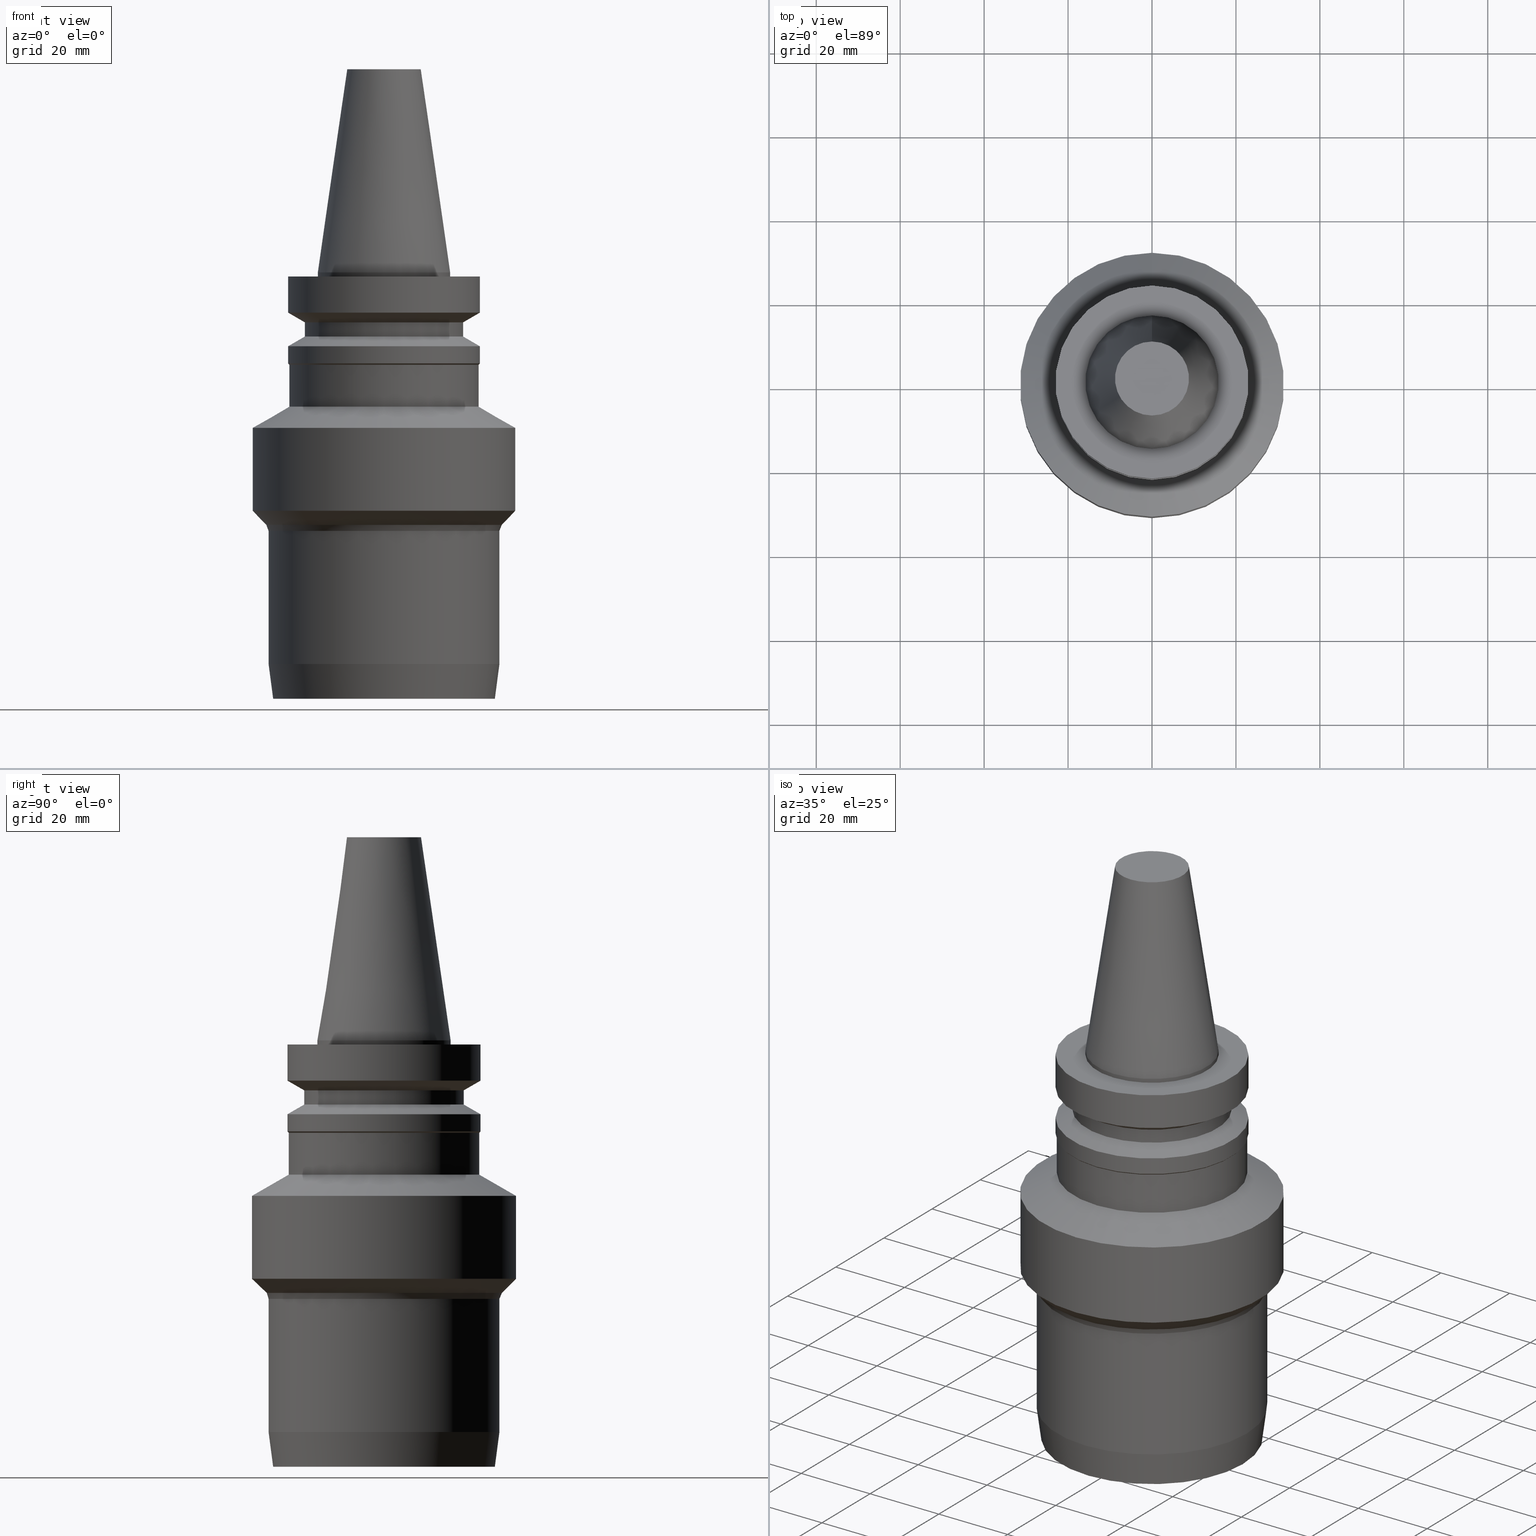
[diagram: canonical four-view strip — front | top / right | iso, engineering-drawing reading convention]
A machine part, canonical four-view strip (front | top / right | iso — engineering-drawing reading convention). The complete STEP part file that produces these views, byte-faithful:
ISO-10303-21;
HEADER;
FILE_DESCRIPTION((''),'1');
FILE_NAME('V:/90_\X2\53D65F9730C730FC30BF\X0\/00_\X2\6DE18DEF30C730FC30BF\X0\/ALL/BBT-BKUS\X2\FF76FF80FF9BFF78FF9E752852A05DE556F3\X0\201801/BBT30-HDC/BBT30-HDC1.000-4.stp','2018-02-07T04:42:28',(''),(''),'Spatial Interop R21 SP3','Kubotek KeyCreator 2011 V10.0.2 (22737)',' ');
FILE_SCHEMA(('automotive_design'));
ENDSEC;
DATA;
#1=MECHANICAL_DESIGN_GEOMETRIC_PRESENTATION_REPRESENTATION(' ',(#10,#11,#12,#13,#14,#15,#16,#17,#18,#19,#20,#21,#22,#23,#24,#25,#26,#27,#28,#29,#30,#31,#32,#33,#34,#35,#36,#37,#38,#39,#40,#41,#42,#43,#44,#45),#6);
#2=PRODUCT_DEFINITION_CONTEXT('',#46,'design');
#3=APPLICATION_PROTOCOL_DEFINITION('INTERNATIONAL STANDARD','automotive_design',1994,#46);
#4=PRODUCT_CATEGORY_RELATIONSHIP('NONE','NONE',#47,#48);
#5=SHAPE_DEFINITION_REPRESENTATION(#49,#50);
#6= (GEOMETRIC_REPRESENTATION_CONTEXT(3)GLOBAL_UNCERTAINTY_ASSIGNED_CONTEXT((#53))GLOBAL_UNIT_ASSIGNED_CONTEXT((#55,#56,#57))REPRESENTATION_CONTEXT('NONE','WORKSPACE'));
#10=STYLED_ITEM('',(#59,#60),#61);
#11=STYLED_ITEM('',(#62,#63),#64);
#12=STYLED_ITEM('',(#65),#66);
#13=STYLED_ITEM('',(#67,#68),#69);
#14=STYLED_ITEM('',(#70,#71),#72);
#15=STYLED_ITEM('',(#73,#74),#75);
#16=STYLED_ITEM('',(#76,#77),#78);
#17=STYLED_ITEM('',(#79,#80),#81);
#18=STYLED_ITEM('',(#82,#83),#84);
#19=STYLED_ITEM('',(#85,#86),#87);
#20=STYLED_ITEM('',(#88),#89);
#21=STYLED_ITEM('',(#90,#91),#92);
#22=STYLED_ITEM('',(#93),#94);
#23=STYLED_ITEM('',(#95),#96);
#24=STYLED_ITEM('',(#97,#98),#99);
#25=STYLED_ITEM('',(#100),#101);
#26=STYLED_ITEM('',(#102),#103);
#27=STYLED_ITEM('',(#104),#105);
#28=STYLED_ITEM('',(#106,#107),#108);
#29=STYLED_ITEM('',(#109),#110);
#30=STYLED_ITEM('',(#111,#112),#113);
#31=STYLED_ITEM('',(#114),#115);
#32=STYLED_ITEM('',(#116,#117),#118);
#33=STYLED_ITEM('',(#119),#120);
#34=STYLED_ITEM('',(#121,#122),#123);
#35=STYLED_ITEM('',(#124),#125);
#36=STYLED_ITEM('',(#126),#127);
#37=STYLED_ITEM('',(#128),#129);
#38=STYLED_ITEM('',(#130,#131),#132);
#39=STYLED_ITEM('',(#133),#134);
#40=STYLED_ITEM('',(#135,#136),#137);
#41=STYLED_ITEM('',(#138),#139);
#42=STYLED_ITEM('',(#140,#141),#142);
#43=STYLED_ITEM('',(#143),#144);
#44=STYLED_ITEM('',(#145),#146);
#45=STYLED_ITEM('',(#147,#148),#149);
#46=APPLICATION_CONTEXT(' ');
#47=PRODUCT_CATEGORY('part','NONE');
#48=PRODUCT_RELATED_PRODUCT_CATEGORY('detail',' ',(#150));
#49=PRODUCT_DEFINITION_SHAPE('NONE','NONE',#151);
#50=ADVANCED_BREP_SHAPE_REPRESENTATION('Unnamed[1]',(#99,#152),#6);
#53=UNCERTAINTY_MEASURE_WITH_UNIT(LENGTH_MEASURE(1.0E-006),#55,'','');
#55= (CONVERSION_BASED_UNIT('MILLIMETRE',#155)LENGTH_UNIT()NAMED_UNIT(#158));
#56= (NAMED_UNIT(#160)PLANE_ANGLE_UNIT()SI_UNIT($,.RADIAN.));
#57= (NAMED_UNIT(#160)SOLID_ANGLE_UNIT()SI_UNIT($,.STERADIAN.));
#59=PRESENTATION_STYLE_ASSIGNMENT((#166));
#60=PRESENTATION_STYLE_ASSIGNMENT((#167));
#61=ADVANCED_FACE('Unnamed[1]',(#168,#169),#170,.T.);
#62=PRESENTATION_STYLE_ASSIGNMENT((#171));
#63=PRESENTATION_STYLE_ASSIGNMENT((#172));
#64=ADVANCED_FACE('Unnamed[1]',(#173,#174),#175,.T.);
#65=PRESENTATION_STYLE_ASSIGNMENT((#176));
#66=EDGE_CURVE('Unnamed[1]',#177,#177,#178,.T.);
#67=PRESENTATION_STYLE_ASSIGNMENT((#179));
#68=PRESENTATION_STYLE_ASSIGNMENT((#180));
#69=ADVANCED_FACE('Unnamed[1]',(#181,#182),#183,.T.);
#70=PRESENTATION_STYLE_ASSIGNMENT((#184));
#71=PRESENTATION_STYLE_ASSIGNMENT((#185));
#72=ADVANCED_FACE('Unnamed[1]',(#186,#187),#188,.T.);
#73=PRESENTATION_STYLE_ASSIGNMENT((#189));
#74=PRESENTATION_STYLE_ASSIGNMENT((#190));
#75=ADVANCED_FACE('Unnamed[1]',(#191,#192),#193,.T.);
#76=PRESENTATION_STYLE_ASSIGNMENT((#194));
#77=PRESENTATION_STYLE_ASSIGNMENT((#195));
#78=ADVANCED_FACE('Unnamed[1]',(#196,#197),#198,.T.);
#79=PRESENTATION_STYLE_ASSIGNMENT((#199));
#80=PRESENTATION_STYLE_ASSIGNMENT((#200));
#81=ADVANCED_FACE('Unnamed[1]',(#201,#202),#203,.T.);
#82=PRESENTATION_STYLE_ASSIGNMENT((#204));
#83=PRESENTATION_STYLE_ASSIGNMENT((#205));
#84=ADVANCED_FACE('Unnamed[1]',(#206,#207),#208,.T.);
#85=PRESENTATION_STYLE_ASSIGNMENT((#209));
#86=PRESENTATION_STYLE_ASSIGNMENT((#210));
#87=ADVANCED_FACE('Unnamed[1]',(#211,#212),#213,.T.);
#88=PRESENTATION_STYLE_ASSIGNMENT((#214));
#89=EDGE_CURVE('Unnamed[1]',#215,#215,#216,.T.);
#90=PRESENTATION_STYLE_ASSIGNMENT((#217));
#91=PRESENTATION_STYLE_ASSIGNMENT((#218));
#92=ADVANCED_FACE('Unnamed[1]',(#219,#220),#221,.T.);
#93=PRESENTATION_STYLE_ASSIGNMENT((#222));
#94=EDGE_CURVE('Unnamed[1]',#223,#223,#224,.T.);
#95=PRESENTATION_STYLE_ASSIGNMENT((#225));
#96=EDGE_CURVE('Unnamed[1]',#226,#226,#227,.T.);
#97=PRESENTATION_STYLE_ASSIGNMENT((#228));
#98=PRESENTATION_STYLE_ASSIGNMENT((#229));
#99=MANIFOLD_SOLID_BREP('Unnamed[1]',#230);
#100=PRESENTATION_STYLE_ASSIGNMENT((#231));
#101=EDGE_CURVE('Unnamed[1]',#232,#232,#233,.T.);
#102=PRESENTATION_STYLE_ASSIGNMENT((#234));
#103=EDGE_CURVE('Unnamed[1]',#235,#235,#236,.T.);
#104=PRESENTATION_STYLE_ASSIGNMENT((#237));
#105=EDGE_CURVE('Unnamed[1]',#238,#238,#239,.T.);
#106=PRESENTATION_STYLE_ASSIGNMENT((#240));
#107=PRESENTATION_STYLE_ASSIGNMENT((#241));
#108=ADVANCED_FACE('Unnamed[1]',(#242,#243),#244,.T.);
#109=PRESENTATION_STYLE_ASSIGNMENT((#245));
#110=EDGE_CURVE('Unnamed[1]',#246,#246,#247,.T.);
#111=PRESENTATION_STYLE_ASSIGNMENT((#248));
#112=PRESENTATION_STYLE_ASSIGNMENT((#249));
#113=ADVANCED_FACE('Unnamed[1]',(#250,#251),#252,.T.);
#114=PRESENTATION_STYLE_ASSIGNMENT((#253));
#115=EDGE_CURVE('Unnamed[1]',#254,#254,#255,.T.);
#116=PRESENTATION_STYLE_ASSIGNMENT((#256));
#117=PRESENTATION_STYLE_ASSIGNMENT((#257));
#118=ADVANCED_FACE('Unnamed[1]',(#258,#259),#260,.T.);
#119=PRESENTATION_STYLE_ASSIGNMENT((#261));
#120=EDGE_CURVE('Unnamed[1]',#262,#262,#263,.T.);
#121=PRESENTATION_STYLE_ASSIGNMENT((#264));
#122=PRESENTATION_STYLE_ASSIGNMENT((#265));
#123=ADVANCED_FACE('Unnamed[1]',(#266),#267,.T.);
#124=PRESENTATION_STYLE_ASSIGNMENT((#268));
#125=EDGE_CURVE('Unnamed[1]',#269,#269,#270,.T.);
#126=PRESENTATION_STYLE_ASSIGNMENT((#271));
#127=EDGE_CURVE('Unnamed[1]',#272,#272,#273,.T.);
#128=PRESENTATION_STYLE_ASSIGNMENT((#274));
#129=EDGE_CURVE('Unnamed[1]',#275,#275,#276,.T.);
#130=PRESENTATION_STYLE_ASSIGNMENT((#277));
#131=PRESENTATION_STYLE_ASSIGNMENT((#278));
#132=ADVANCED_FACE('Unnamed[1]',(#279,#280),#281,.T.);
#133=PRESENTATION_STYLE_ASSIGNMENT((#282));
#134=EDGE_CURVE('Unnamed[1]',#283,#283,#284,.T.);
#135=PRESENTATION_STYLE_ASSIGNMENT((#285));
#136=PRESENTATION_STYLE_ASSIGNMENT((#286));
#137=ADVANCED_FACE('Unnamed[1]',(#287,#288),#289,.T.);
#138=PRESENTATION_STYLE_ASSIGNMENT((#290));
#139=EDGE_CURVE('Unnamed[1]',#291,#291,#292,.T.);
#140=PRESENTATION_STYLE_ASSIGNMENT((#293));
#141=PRESENTATION_STYLE_ASSIGNMENT((#294));
#142=ADVANCED_FACE('Unnamed[1]',(#295),#296,.T.);
#143=PRESENTATION_STYLE_ASSIGNMENT((#297));
#144=EDGE_CURVE('Unnamed[1]',#298,#298,#299,.T.);
#145=PRESENTATION_STYLE_ASSIGNMENT((#300));
#146=EDGE_CURVE('Unnamed[1]',#301,#301,#302,.T.);
#147=PRESENTATION_STYLE_ASSIGNMENT((#303));
#148=PRESENTATION_STYLE_ASSIGNMENT((#304));
#149=ADVANCED_FACE('Unnamed[1]',(#305,#306),#307,.T.);
#150=PRODUCT('Unnamed[1]','Unnamed[1]','PART-Unnamed[1]-DESC',(#308));
#151=PRODUCT_DEFINITION('NONE','NONE',#309,#2);
#152=AXIS2_PLACEMENT_3D('',#310,#311,#312);
#155=LENGTH_MEASURE_WITH_UNIT(LENGTH_MEASURE(1.0),#313);
#158=DIMENSIONAL_EXPONENTS(1.0,0.0,0.0,0.0,0.0,0.0,0.0);
#160=DIMENSIONAL_EXPONENTS(0.0,0.0,0.0,0.0,0.0,0.0,0.0);
#166=SURFACE_STYLE_USAGE(.BOTH.,#314);
#167=CURVE_STYLE('',#315,POSITIVE_LENGTH_MEASURE(1000.0),#316);
#168=FACE_BOUND('',#317,.T.);
#169=FACE_BOUND('',#318,.T.);
#170=CONICAL_SURFACE('',#319,21.0,1.04719755058881);
#171=SURFACE_STYLE_USAGE(.BOTH.,#320);
#172=CURVE_STYLE('',#321,POSITIVE_LENGTH_MEASURE(1000.0),#322);
#173=FACE_BOUND('',#323,.T.);
#174=FACE_BOUND('',#324,.T.);
#175=CYLINDRICAL_SURFACE('',#325,23.0);
#176=CURVE_STYLE('',#326,POSITIVE_LENGTH_MEASURE(1000.0),#327);
#177=VERTEX_POINT('',#328);
#178=CIRCLE('',#329,19.0);
#179=SURFACE_STYLE_USAGE(.BOTH.,#330);
#180=CURVE_STYLE('',#331,POSITIVE_LENGTH_MEASURE(1000.0),#332);
#181=FACE_BOUND('',#333,.T.);
#182=FACE_BOUND('',#334,.T.);
#183=CYLINDRICAL_SURFACE('',#335,19.0);
#184=SURFACE_STYLE_USAGE(.BOTH.,#336);
#185=CURVE_STYLE('',#337,POSITIVE_LENGTH_MEASURE(1000.0),#338);
#186=FACE_BOUND('',#339,.T.);
#187=FACE_BOUND('',#340,.T.);
#188=CONICAL_SURFACE('',#341,12.3457500009933,0.144815870013618);
#189=SURFACE_STYLE_USAGE(.BOTH.,#342);
#190=CURVE_STYLE('',#343,POSITIVE_LENGTH_MEASURE(1000.0),#344);
#191=FACE_BOUND('',#345,.T.);
#192=FACE_BOUND('',#346,.T.);
#193=CONICAL_SURFACE('',#347,27.0750000000002,1.04719755119662);
#194=SURFACE_STYLE_USAGE(.BOTH.,#348);
#195=CURVE_STYLE('',#349,POSITIVE_LENGTH_MEASURE(1000.0),#350);
#196=FACE_BOUND('',#351,.T.);
#197=FACE_BOUND('',#352,.T.);
#198=CONICAL_SURFACE('',#353,21.0,1.04719755058882);
#199=SURFACE_STYLE_USAGE(.BOTH.,#354);
#200=CURVE_STYLE('',#355,POSITIVE_LENGTH_MEASURE(1000.0),#356);
#201=FACE_BOUND('',#357,.T.);
#202=FACE_BOUND('',#358,.T.);
#203=CYLINDRICAL_SURFACE('',#359,31.45);
#204=SURFACE_STYLE_USAGE(.BOTH.,#360);
#205=CURVE_STYLE('',#361,POSITIVE_LENGTH_MEASURE(1000.0),#362);
#206=FACE_OUTER_BOUND('',#363,.T.);
#207=FACE_BOUND('',#364,.T.);
#208=PLANE('',#365);
#209=SURFACE_STYLE_USAGE(.BOTH.,#366);
#210=CURVE_STYLE('',#367,POSITIVE_LENGTH_MEASURE(1000.0),#368);
#211=FACE_BOUND('',#369,.T.);
#212=FACE_BOUND('',#370,.T.);
#213=CYLINDRICAL_SURFACE('',#371,27.5000000000018);
#214=CURVE_STYLE('',#372,POSITIVE_LENGTH_MEASURE(1000.0),#373);
#215=VERTEX_POINT('',#374);
#216=CIRCLE('',#375,15.875);
#217=SURFACE_STYLE_USAGE(.BOTH.,#376);
#218=CURVE_STYLE('',#377,POSITIVE_LENGTH_MEASURE(1000.0),#378);
#219=FACE_BOUND('',#379,.T.);
#220=FACE_BOUND('',#380,.T.);
#221=CYLINDRICAL_SURFACE('',#381,22.7000000000001);
#222=CURVE_STYLE('',#382,POSITIVE_LENGTH_MEASURE(1000.0),#383);
#223=VERTEX_POINT('',#384);
#224=CIRCLE('',#385,23.0);
#225=CURVE_STYLE('',#386,POSITIVE_LENGTH_MEASURE(1000.0),#387);
#226=VERTEX_POINT('',#388);
#227=CIRCLE('',#389,31.45);
#228=SURFACE_STYLE_USAGE(.BOTH.,#390);
#229=CURVE_STYLE('',#391,POSITIVE_LENGTH_MEASURE(1000.0),#392);
#230=CLOSED_SHELL('',(#123,#72,#113,#84,#64,#61,#69,#78,#132,#137,#92,#75,#81,#108,#149,#87,#118,#142));
#231=CURVE_STYLE('',#393,POSITIVE_LENGTH_MEASURE(1000.0),#394);
#232=VERTEX_POINT('',#395);
#233=CIRCLE('',#396,22.7);
#234=CURVE_STYLE('',#397,POSITIVE_LENGTH_MEASURE(1000.0),#398);
#235=VERTEX_POINT('',#399);
#236=CIRCLE('',#400,22.7000000000003);
#237=CURVE_STYLE('',#401,POSITIVE_LENGTH_MEASURE(1000.0),#402);
#238=VERTEX_POINT('',#403);
#239=CIRCLE('',#404,26.40856909562);
#240=SURFACE_STYLE_USAGE(.BOTH.,#405);
#241=CURVE_STYLE('',#406,POSITIVE_LENGTH_MEASURE(1000.0),#407);
#242=FACE_BOUND('',#408,.T.);
#243=FACE_BOUND('',#409,.T.);
#244=CONICAL_SURFACE('',#410,29.7678932188139,0.785398163397456);
#245=CURVE_STYLE('',#411,POSITIVE_LENGTH_MEASURE(1000.0),#412);
#246=VERTEX_POINT('',#413);
#247=CIRCLE('',#414,28.0857864376278);
#248=SURFACE_STYLE_USAGE(.BOTH.,#415);
#249=CURVE_STYLE('',#416,POSITIVE_LENGTH_MEASURE(1000.0),#417);
#250=FACE_BOUND('',#418,.T.);
#251=FACE_BOUND('',#419,.T.);
#252=CYLINDRICAL_SURFACE('',#420,15.875);
#253=CURVE_STYLE('',#421,POSITIVE_LENGTH_MEASURE(1000.0),#422);
#254=VERTEX_POINT('',#423);
#255=CIRCLE('',#424,23.0);
#256=SURFACE_STYLE_USAGE(.BOTH.,#425);
#257=CURVE_STYLE('',#426,POSITIVE_LENGTH_MEASURE(1000.0),#427);
#258=FACE_BOUND('',#428,.T.);
#259=FACE_BOUND('',#429,.T.);
#260=CONICAL_SURFACE('',#430,26.954284547811,0.130899693899447);
#261=CURVE_STYLE('',#431,POSITIVE_LENGTH_MEASURE(1000.0),#432);
#262=VERTEX_POINT('',#433);
#263=CIRCLE('',#434,8.81650000198669);
#264=SURFACE_STYLE_USAGE(.BOTH.,#435);
#265=CURVE_STYLE('',#436,POSITIVE_LENGTH_MEASURE(1000.0),#437);
#266=FACE_OUTER_BOUND('',#438,.T.);
#267=PLANE('',#439);
#268=CURVE_STYLE('',#440,POSITIVE_LENGTH_MEASURE(1000.0),#441);
#269=VERTEX_POINT('',#442);
#270=CIRCLE('',#443,19.0);
#271=CURVE_STYLE('',#444,POSITIVE_LENGTH_MEASURE(1000.0),#445);
#272=VERTEX_POINT('',#446);
#273=CIRCLE('',#447,23.0);
#274=CURVE_STYLE('',#448,POSITIVE_LENGTH_MEASURE(1000.0),#449);
#275=VERTEX_POINT('',#450);
#276=CIRCLE('',#451,27.5000000000018);
#277=SURFACE_STYLE_USAGE(.BOTH.,#452);
#278=CURVE_STYLE('',#453,POSITIVE_LENGTH_MEASURE(1000.0),#454);
#279=FACE_BOUND('',#455,.T.);
#280=FACE_BOUND('',#456,.T.);
#281=CYLINDRICAL_SURFACE('',#457,23.0);
#282=CURVE_STYLE('',#458,POSITIVE_LENGTH_MEASURE(1000.0),#459);
#283=VERTEX_POINT('',#460);
#284=CIRCLE('',#461,27.5000000000019);
#285=SURFACE_STYLE_USAGE(.BOTH.,#462);
#286=CURVE_STYLE('',#463,POSITIVE_LENGTH_MEASURE(1000.0),#464);
#287=FACE_BOUND('',#465,.T.);
#288=FACE_BOUND('',#466,.T.);
#289=CONICAL_SURFACE('',#467,22.85,0.785398163397401);
#290=CURVE_STYLE('',#468,POSITIVE_LENGTH_MEASURE(1000.0),#469);
#291=VERTEX_POINT('',#470);
#292=CIRCLE('',#471,15.875);
#293=SURFACE_STYLE_USAGE(.BOTH.,#472);
#294=CURVE_STYLE('',#473,POSITIVE_LENGTH_MEASURE(1000.0),#474);
#295=FACE_OUTER_BOUND('',#475,.T.);
#296=PLANE('',#476);
#297=CURVE_STYLE('',#477,POSITIVE_LENGTH_MEASURE(1000.0),#478);
#298=VERTEX_POINT('',#479);
#299=CIRCLE('',#480,31.45);
#300=CURVE_STYLE('',#481,POSITIVE_LENGTH_MEASURE(1000.0),#482);
#301=VERTEX_POINT('',#483);
#302=CIRCLE('',#484,23.0);
#303=SURFACE_STYLE_USAGE(.BOTH.,#485);
#304=CURVE_STYLE('',#486,POSITIVE_LENGTH_MEASURE(1000.0),#487);
#305=FACE_BOUND('',#488,.T.);
#306=FACE_BOUND('',#489,.T.);
#307=CONICAL_SURFACE('',#490,27.7928932188148,0.392699081698697);
#308=PRODUCT_CONTEXT('',#46,'mechanical');
#309=PRODUCT_DEFINITION_FORMATION_WITH_SPECIFIED_SOURCE(' ','NONE',#150,.NOT_KNOWN.);
#310=CARTESIAN_POINT('',(0.0,0.0,0.0));
#311=DIRECTION('',(0.0,0.0,1.0));
#312=DIRECTION('',(1.0,0.0,0.0));
#313= (NAMED_UNIT(#158)LENGTH_UNIT()SI_UNIT(.MILLI.,.METRE.));
#314=SURFACE_SIDE_STYLE('',(#492));
#315=DRAUGHTING_PRE_DEFINED_CURVE_FONT('continuous');
#316=COLOUR_RGB('',0.0,1.0,0.0);
#317=EDGE_LOOP('',(#493));
#318=EDGE_LOOP('',(#494));
#319=AXIS2_PLACEMENT_3D('',#495,#496,#497);
#320=SURFACE_SIDE_STYLE('',(#498));
#321=DRAUGHTING_PRE_DEFINED_CURVE_FONT('continuous');
#322=COLOUR_RGB('',0.0,1.0,0.0);
#323=EDGE_LOOP('',(#499));
#324=EDGE_LOOP('',(#500));
#325=AXIS2_PLACEMENT_3D('',#501,#502,#503);
#326=DRAUGHTING_PRE_DEFINED_CURVE_FONT('continuous');
#327=COLOUR_RGB('',0.0,1.0,0.0);
#328=CARTESIAN_POINT('',(9.36279151221199E-016,19.0,-15.29059892));
#329=AXIS2_PLACEMENT_3D('',#504,#505,#506);
#330=SURFACE_SIDE_STYLE('',(#507));
#331=DRAUGHTING_PRE_DEFINED_CURVE_FONT('continuous');
#332=COLOUR_RGB('',0.0,1.0,0.0);
#333=EDGE_LOOP('',(#508));
#334=EDGE_LOOP('',(#509));
#335=AXIS2_PLACEMENT_3D('',#510,#511,#512);
#336=SURFACE_SIDE_STYLE('',(#513));
#337=DRAUGHTING_PRE_DEFINED_CURVE_FONT('continuous');
#338=COLOUR_RGB('',0.0,1.0,0.0);
#339=EDGE_LOOP('',(#514));
#340=EDGE_LOOP('',(#515));
#341=AXIS2_PLACEMENT_3D('',#516,#517,#518);
#342=SURFACE_SIDE_STYLE('',(#519));
#343=DRAUGHTING_PRE_DEFINED_CURVE_FONT('continuous');
#344=COLOUR_RGB('',0.0,1.0,0.0);
#345=EDGE_LOOP('',(#520));
#346=EDGE_LOOP('',(#521));
#347=AXIS2_PLACEMENT_3D('',#522,#523,#524);
#348=SURFACE_SIDE_STYLE('',(#525));
#349=DRAUGHTING_PRE_DEFINED_CURVE_FONT('continuous');
#350=COLOUR_RGB('',0.0,1.0,0.0);
#351=EDGE_LOOP('',(#526));
#352=EDGE_LOOP('',(#527));
#353=AXIS2_PLACEMENT_3D('',#528,#529,#530);
#354=SURFACE_SIDE_STYLE('',(#531));
#355=DRAUGHTING_PRE_DEFINED_CURVE_FONT('continuous');
#356=COLOUR_RGB('',0.0,1.0,0.0);
#357=EDGE_LOOP('',(#532));
#358=EDGE_LOOP('',(#533));
#359=AXIS2_PLACEMENT_3D('',#534,#535,#536);
#360=SURFACE_SIDE_STYLE('',(#537));
#361=DRAUGHTING_PRE_DEFINED_CURVE_FONT('continuous');
#362=COLOUR_RGB('',0.0,1.0,0.0);
#363=EDGE_LOOP('',(#538));
#364=EDGE_LOOP('',(#539));
#365=AXIS2_PLACEMENT_3D('',#540,#541,#542);
#366=SURFACE_SIDE_STYLE('',(#543));
#367=DRAUGHTING_PRE_DEFINED_CURVE_FONT('continuous');
#368=COLOUR_RGB('',0.0,1.0,0.0);
#369=EDGE_LOOP('',(#544));
#370=EDGE_LOOP('',(#545));
#371=AXIS2_PLACEMENT_3D('',#546,#547,#548);
#372=DRAUGHTING_PRE_DEFINED_CURVE_FONT('continuous');
#373=COLOUR_RGB('',0.0,1.0,0.0);
#374=CARTESIAN_POINT('',(6.12323399573675E-017,15.875,-0.999999999999998));
#375=AXIS2_PLACEMENT_3D('',#549,#550,#551);
#376=SURFACE_SIDE_STYLE('',(#552));
#377=DRAUGHTING_PRE_DEFINED_CURVE_FONT('continuous');
#378=COLOUR_RGB('',0.0,1.0,0.0);
#379=EDGE_LOOP('',(#553));
#380=EDGE_LOOP('',(#554));
#381=AXIS2_PLACEMENT_3D('',#555,#556,#557);
#382=DRAUGHTING_PRE_DEFINED_CURVE_FONT('continuous');
#383=COLOUR_RGB('',0.0,1.0,0.0);
#384=CARTESIAN_POINT('',(1.32874177707488E-015,23.0,-21.7000000000001));
#385=AXIS2_PLACEMENT_3D('',#558,#559,#560);
#386=DRAUGHTING_PRE_DEFINED_CURVE_FONT('continuous');
#387=COLOUR_RGB('',0.0,1.0,0.0);
#388=CARTESIAN_POINT('',(3.47857255950651E-015,31.45,-56.8094010767582));
#389=AXIS2_PLACEMENT_3D('',#561,#562,#563);
#390=SURFACE_SIDE_STYLE('',(#564));
#391=DRAUGHTING_PRE_DEFINED_CURVE_FONT('continuous');
#392=COLOUR_RGB('',0.0,1.0,0.0);
#393=DRAUGHTING_PRE_DEFINED_CURVE_FONT('continuous');
#394=COLOUR_RGB('',0.0,1.0,0.0);
#395=CARTESIAN_POINT('',(1.3471114790621E-015,22.7,-22.0000000000002));
#396=AXIS2_PLACEMENT_3D('',#565,#566,#567);
#397=DRAUGHTING_PRE_DEFINED_CURVE_FONT('continuous');
#398=COLOUR_RGB('',0.0,1.0,0.0);
#399=CARTESIAN_POINT('',(1.95943487863577E-015,22.7000000000003,-32.0));
#400=AXIS2_PLACEMENT_3D('',#568,#569,#570);
#401=DRAUGHTING_PRE_DEFINED_CURVE_FONT('continuous');
#402=COLOUR_RGB('',0.0,1.0,0.0);
#403=CARTESIAN_POINT('',(6.22120573966852E-015,26.40856909562,-101.6));
#404=AXIS2_PLACEMENT_3D('',#571,#572,#573);
#405=SURFACE_SIDE_STYLE('',(#574));
#406=DRAUGHTING_PRE_DEFINED_CURVE_FONT('continuous');
#407=COLOUR_RGB('',0.0,1.0,0.0);
#408=EDGE_LOOP('',(#575));
#409=EDGE_LOOP('',(#576));
#410=AXIS2_PLACEMENT_3D('',#577,#578,#579);
#411=DRAUGHTING_PRE_DEFINED_CURVE_FONT('continuous');
#412=COLOUR_RGB('',0.0,1.0,0.0);
#413=CARTESIAN_POINT('',(3.68457122804686E-015,28.0857864376278,-60.1736146391303));
#414=AXIS2_PLACEMENT_3D('',#580,#581,#582);
#415=SURFACE_SIDE_STYLE('',(#583));
#416=DRAUGHTING_PRE_DEFINED_CURVE_FONT('continuous');
#417=COLOUR_RGB('',0.0,1.0,0.0);
#418=EDGE_LOOP('',(#584));
#419=EDGE_LOOP('',(#585));
#420=AXIS2_PLACEMENT_3D('',#586,#587,#588);
#421=DRAUGHTING_PRE_DEFINED_CURVE_FONT('continuous');
#422=COLOUR_RGB('',0.0,1.0,0.0);
#423=CARTESIAN_POINT('',(6.12323399573674E-017,23.0,-0.999999999999997));
#424=AXIS2_PLACEMENT_3D('',#589,#590,#591);
#425=SURFACE_SIDE_STYLE('',(#592));
#426=DRAUGHTING_PRE_DEFINED_CURVE_FONT('continuous');
#427=COLOUR_RGB('',0.0,1.0,0.0);
#428=EDGE_LOOP('',(#593));
#429=EDGE_LOOP('',(#594));
#430=AXIS2_PLACEMENT_3D('',#595,#596,#597);
#431=DRAUGHTING_PRE_DEFINED_CURVE_FONT('continuous');
#432=COLOUR_RGB('',0.0,1.0,0.0);
#433=CARTESIAN_POINT('',(-2.96364525393659E-015,8.81650000198669,48.4));
#434=AXIS2_PLACEMENT_3D('',#598,#599,#600);
#435=SURFACE_SIDE_STYLE('',(#601));
#436=DRAUGHTING_PRE_DEFINED_CURVE_FONT('continuous');
#437=COLOUR_RGB('',0.0,1.0,0.0);
#438=EDGE_LOOP('',(#602));
#439=AXIS2_PLACEMENT_3D('',#603,#604,#605);
#440=DRAUGHTING_PRE_DEFINED_CURVE_FONT('continuous');
#441=COLOUR_RGB('',0.0,1.0,0.0);
#442=CARTESIAN_POINT('',(7.29240495619202E-016,19.0,-11.90940108));
#443=AXIS2_PLACEMENT_3D('',#606,#607,#608);
#444=DRAUGHTING_PRE_DEFINED_CURVE_FONT('continuous');
#445=COLOUR_RGB('',0.0,1.0,0.0);
#446=CARTESIAN_POINT('',(1.07768918324967E-015,23.0,-17.6));
#447=AXIS2_PLACEMENT_3D('',#609,#610,#611);
#448=DRAUGHTING_PRE_DEFINED_CURVE_FONT('continuous');
#449=COLOUR_RGB('',0.0,1.0,0.0);
#450=CARTESIAN_POINT('',(3.7711668336703E-015,27.5000000000018,-61.5878282015015));
#451=AXIS2_PLACEMENT_3D('',#612,#613,#614);
#452=SURFACE_SIDE_STYLE('',(#615));
#453=DRAUGHTING_PRE_DEFINED_CURVE_FONT('continuous');
#454=COLOUR_RGB('',0.0,1.0,0.0);
#455=EDGE_LOOP('',(#616));
#456=EDGE_LOOP('',(#617));
#457=AXIS2_PLACEMENT_3D('',#618,#619,#620);
#458=DRAUGHTING_PRE_DEFINED_CURVE_FONT('continuous');
#459=COLOUR_RGB('',0.0,1.0,0.0);
#460=CARTESIAN_POINT('',(5.71357489785489E-015,27.500000000002,-93.309759219277));
#461=AXIS2_PLACEMENT_3D('',#621,#622,#623);
#462=SURFACE_SIDE_STYLE('',(#624));
#463=DRAUGHTING_PRE_DEFINED_CURVE_FONT('continuous');
#464=COLOUR_RGB('',0.0,1.0,0.0);
#465=EDGE_LOOP('',(#625));
#466=EDGE_LOOP('',(#626));
#467=AXIS2_PLACEMENT_3D('',#627,#628,#629);
#468=DRAUGHTING_PRE_DEFINED_CURVE_FONT('continuous');
#469=COLOUR_RGB('',0.0,1.0,0.0);
#470=CARTESIAN_POINT('',(-1.95674482349743E-031,15.875,1.94412679364642E-015));
#471=AXIS2_PLACEMENT_3D('',#630,#631,#632);
#472=SURFACE_SIDE_STYLE('',(#633));
#473=DRAUGHTING_PRE_DEFINED_CURVE_FONT('continuous');
#474=COLOUR_RGB('',0.0,1.0,0.0);
#475=EDGE_LOOP('',(#634));
#476=AXIS2_PLACEMENT_3D('',#635,#636,#637);
#477=DRAUGHTING_PRE_DEFINED_CURVE_FONT('continuous');
#478=COLOUR_RGB('',0.0,1.0,0.0);
#479=CARTESIAN_POINT('',(2.26876932326384E-015,31.45,-37.0518148554089));
#480=AXIS2_PLACEMENT_3D('',#638,#639,#640);
#481=DRAUGHTING_PRE_DEFINED_CURVE_FONT('continuous');
#482=COLOUR_RGB('',0.0,1.0,0.0);
#483=CARTESIAN_POINT('',(5.87830463590729E-016,23.0,-9.59999999999999));
#484=AXIS2_PLACEMENT_3D('',#641,#642,#643);
#485=SURFACE_SIDE_STYLE('',(#644));
#486=DRAUGHTING_PRE_DEFINED_CURVE_FONT('continuous');
#487=COLOUR_RGB('',0.0,1.0,0.0);
#488=EDGE_LOOP('',(#645));
#489=EDGE_LOOP('',(#646));
#490=AXIS2_PLACEMENT_3D('',#647,#648,#649);
#492=SURFACE_STYLE_FILL_AREA(#650);
#493=ORIENTED_EDGE('',*,*,#125,.F.);
#494=ORIENTED_EDGE('',*,*,#146,.T.);
#495=CARTESIAN_POINT('',(6.58535479604966E-016,1.31707095920993E-015,-10.75470054));
#496=DIRECTION('',(-6.12323399573677E-017,-1.2246467991477E-016,1.0));
#497=DIRECTION('',(-1.23259516440783E-032,1.0,1.2246467991477E-016));
#498=SURFACE_STYLE_FILL_AREA(#651);
#499=ORIENTED_EDGE('',*,*,#146,.F.);
#500=ORIENTED_EDGE('',*,*,#115,.T.);
#501=CARTESIAN_POINT('',(3.24531401774048E-016,6.49062803548097E-016,-5.3));
#502=DIRECTION('',(6.12323399573677E-017,1.22464679914716E-016,-1.0));
#503=DIRECTION('',(-1.23259516440783E-032,1.0,1.22464679914716E-016));
#504=CARTESIAN_POINT('',(9.36279151221199E-016,1.8725583024424E-015,-15.29059892));
#505=DIRECTION('',(6.12323399573677E-017,1.2246467991475E-016,-1.0));
#506=DIRECTION('',(-1.23259516440783E-032,1.0,1.2246467991475E-016));
#507=SURFACE_STYLE_FILL_AREA(#652);
#508=ORIENTED_EDGE('',*,*,#66,.F.);
#509=ORIENTED_EDGE('',*,*,#125,.T.);
#510=CARTESIAN_POINT('',(8.32759823420201E-016,1.6655196468404E-015,-13.6));
#511=DIRECTION('',(6.12323399573677E-017,1.2246467991475E-016,-1.0));
#512=DIRECTION('',(-1.23259516440783E-032,1.0,1.2246467991475E-016));
#513=SURFACE_STYLE_FILL_AREA(#653);
#514=ORIENTED_EDGE('',*,*,#139,.F.);
#515=ORIENTED_EDGE('',*,*,#120,.T.);
#516=CARTESIAN_POINT('',(-1.4818226269683E-015,-2.96364525393659E-015,24.2));
#517=DIRECTION('',(6.12323399573677E-017,1.22464679914765E-016,-1.0));
#518=DIRECTION('',(-1.23259516440785E-032,1.0,1.22464679914765E-016));
#519=SURFACE_STYLE_FILL_AREA(#654);
#520=ORIENTED_EDGE('',*,*,#144,.F.);
#521=ORIENTED_EDGE('',*,*,#103,.T.);
#522=CARTESIAN_POINT('',(2.11410210094981E-015,4.22820420189961E-015,-34.5259074277045));
#523=DIRECTION('',(6.12323399573677E-017,1.22464679914756E-016,-1.0));
#524=DIRECTION('',(-1.23259516440769E-032,1.0,1.22464679914756E-016));
#525=SURFACE_STYLE_FILL_AREA(#655);
#526=ORIENTED_EDGE('',*,*,#127,.F.);
#527=ORIENTED_EDGE('',*,*,#66,.T.);
#528=CARTESIAN_POINT('',(1.00698416723543E-015,2.01396833447087E-015,-16.44529946));
#529=DIRECTION('',(6.12323399573677E-017,1.2246467991477E-016,-1.0));
#530=DIRECTION('',(-1.23259516440783E-032,1.0,1.2246467991477E-016));
#531=SURFACE_STYLE_FILL_AREA(#656);
#532=ORIENTED_EDGE('',*,*,#96,.F.);
#533=ORIENTED_EDGE('',*,*,#144,.T.);
#534=CARTESIAN_POINT('',(2.87367094138517E-015,5.74734188277035E-015,-46.9306079660835));
#535=DIRECTION('',(6.12323399573677E-017,1.2246467991475E-016,-1.0));
#536=DIRECTION('',(-1.23259516440772E-032,1.0,1.2246467991475E-016));
#537=SURFACE_STYLE_FILL_AREA(#657);
#538=ORIENTED_EDGE('',*,*,#115,.F.);
#539=ORIENTED_EDGE('',*,*,#89,.T.);
#540=CARTESIAN_POINT('',(6.12323399573674E-017,19.4375,-0.999999999999998));
#541=DIRECTION('',(-6.12323399573677E-017,-1.22464679914735E-016,1.0));
#542=DIRECTION('',(1.23259516440783E-032,-1.0,-1.22464679914735E-016));
#543=SURFACE_STYLE_FILL_AREA(#658);
#544=ORIENTED_EDGE('',*,*,#134,.F.);
#545=ORIENTED_EDGE('',*,*,#129,.T.);
#546=CARTESIAN_POINT('',(4.74237086576259E-015,9.48474173152518E-015,-77.4487937103892));
#547=DIRECTION('',(6.12323399573677E-017,1.22464679914734E-016,-1.0));
#548=DIRECTION('',(-1.23259516440775E-032,1.0,1.22464679914734E-016));
#549=CARTESIAN_POINT('',(6.12323399573677E-017,1.22464679914735E-016,-1.0));
#550=DIRECTION('',(6.12323399573677E-017,1.22464679914714E-016,-1.0));
#551=DIRECTION('',(-1.23259516440783E-032,1.0,1.22464679914714E-016));
#552=SURFACE_STYLE_FILL_AREA(#659);
#553=ORIENTED_EDGE('',*,*,#103,.F.);
#554=ORIENTED_EDGE('',*,*,#101,.T.);
#555=CARTESIAN_POINT('',(1.65327317884893E-015,3.30654635769787E-015,-27.0000000000001));
#556=DIRECTION('',(6.12323399573677E-017,1.22464679914766E-016,-1.0));
#557=DIRECTION('',(-1.23259516440767E-032,1.0,1.22464679914766E-016));
#558=CARTESIAN_POINT('',(1.32874177707488E-015,2.65748355414977E-015,-21.7000000000001));
#559=DIRECTION('',(6.12323399573677E-017,1.22464679914716E-016,-1.0));
#560=DIRECTION('',(-1.23259516440783E-032,1.0,1.22464679914716E-016));
#561=CARTESIAN_POINT('',(3.47857255950651E-015,6.95714511901301E-015,-56.8094010767582));
#562=DIRECTION('',(6.12323399573677E-017,1.2246467991475E-016,-1.0));
#563=DIRECTION('',(-1.23259516440772E-032,1.0,1.2246467991475E-016));
#564=SURFACE_STYLE_FILL_AREA(#660);
#565=CARTESIAN_POINT('',(1.3471114790621E-015,2.6942229581242E-015,-22.0000000000002));
#566=DIRECTION('',(6.12323399573677E-017,1.22464679914767E-016,-1.0));
#567=DIRECTION('',(-1.23259516440768E-032,1.0,1.22464679914767E-016));
#568=CARTESIAN_POINT('',(1.95943487863577E-015,3.91886975727154E-015,-32.0));
#569=DIRECTION('',(6.12323399573677E-017,1.22464679914765E-016,-1.0));
#570=DIRECTION('',(-1.23259516440766E-032,1.0,1.22464679914765E-016));
#571=CARTESIAN_POINT('',(6.22120573966852E-015,1.2442411479337E-014,-101.6));
#572=DIRECTION('',(6.12323399573677E-017,1.2246467991471E-016,-1.0));
#573=DIRECTION('',(-1.23259516440783E-032,1.0,1.2246467991471E-016));
#574=SURFACE_STYLE_FILL_AREA(#661);
#575=ORIENTED_EDGE('',*,*,#110,.F.);
#576=ORIENTED_EDGE('',*,*,#96,.T.);
#577=CARTESIAN_POINT('',(3.58157189377668E-015,7.16314378755337E-015,-58.4915078579442));
#578=DIRECTION('',(-6.12323399573677E-017,-1.2246467991474E-016,1.0));
#579=DIRECTION('',(-1.23259516440782E-032,1.0,1.2246467991474E-016));
#580=CARTESIAN_POINT('',(3.68457122804686E-015,7.36914245609372E-015,-60.1736146391303));
#581=DIRECTION('',(6.12323399573677E-017,1.22464679914729E-016,-1.0));
#582=DIRECTION('',(-1.23259516440794E-032,1.0,1.22464679914729E-016));
#583=SURFACE_STYLE_FILL_AREA(#662);
#584=ORIENTED_EDGE('',*,*,#89,.F.);
#585=ORIENTED_EDGE('',*,*,#139,.T.);
#586=CARTESIAN_POINT('',(3.06161699786838E-017,6.12323399573676E-017,-0.5));
#587=DIRECTION('',(6.12323399573677E-017,1.22464679914714E-016,-1.0));
#588=DIRECTION('',(-1.23259516440783E-032,1.0,1.22464679914714E-016));
#589=CARTESIAN_POINT('',(6.12323399573677E-017,1.22464679914735E-016,-1.0));
#590=DIRECTION('',(6.12323399573677E-017,1.22464679914716E-016,-1.0));
#591=DIRECTION('',(-1.23259516440783E-032,1.0,1.22464679914716E-016));
#592=SURFACE_STYLE_FILL_AREA(#663);
#593=ORIENTED_EDGE('',*,*,#105,.F.);
#594=ORIENTED_EDGE('',*,*,#134,.T.);
#595=CARTESIAN_POINT('',(5.96739031876171E-015,1.19347806375234E-014,-97.4548796096382));
#596=DIRECTION('',(-6.12323399573677E-017,-1.22464679914752E-016,1.0));
#597=DIRECTION('',(-1.23259516440795E-032,1.0,1.22464679914752E-016));
#598=CARTESIAN_POINT('',(-2.96364525393659E-015,-5.92729050787319E-015,48.4));
#599=DIRECTION('',(6.12323399573677E-017,1.22464679914764E-016,-1.0));
#600=DIRECTION('',(-1.23259516440789E-032,1.0,1.22464679914764E-016));
#601=SURFACE_STYLE_FILL_AREA(#664);
#602=ORIENTED_EDGE('',*,*,#120,.F.);
#603=CARTESIAN_POINT('',(-2.96364525393659E-015,4.40825000099334,48.4));
#604=DIRECTION('',(-6.12323399573677E-017,-1.22464679914735E-016,1.0));
#605=DIRECTION('',(1.23259516440783E-032,-1.0,-1.22464679914735E-016));
#606=CARTESIAN_POINT('',(7.29240495619202E-016,1.4584809912384E-015,-11.90940108));
#607=DIRECTION('',(6.12323399573677E-017,1.2246467991475E-016,-1.0));
#608=DIRECTION('',(-1.23259516440783E-032,1.0,1.2246467991475E-016));
#609=CARTESIAN_POINT('',(1.07768918324967E-015,2.15537836649934E-015,-17.6));
#610=DIRECTION('',(6.12323399573677E-017,1.22464679914716E-016,-1.0));
#611=DIRECTION('',(-1.23259516440783E-032,1.0,1.22464679914716E-016));
#612=CARTESIAN_POINT('',(3.7711668336703E-015,7.54233366734059E-015,-61.5878282015015));
#613=DIRECTION('',(6.12323399573677E-017,1.22464679914734E-016,-1.0));
#614=DIRECTION('',(-1.23259516440775E-032,1.0,1.22464679914734E-016));
#615=SURFACE_STYLE_FILL_AREA(#665);
#616=ORIENTED_EDGE('',*,*,#94,.F.);
#617=ORIENTED_EDGE('',*,*,#127,.T.);
#618=CARTESIAN_POINT('',(1.20321548016228E-015,2.40643096032455E-015,-19.65));
#619=DIRECTION('',(6.12323399573677E-017,1.22464679914716E-016,-1.0));
#620=DIRECTION('',(-1.23259516440783E-032,1.0,1.22464679914716E-016));
#621=CARTESIAN_POINT('',(5.71357489785489E-015,1.14271497957098E-014,-93.309759219277));
#622=DIRECTION('',(6.12323399573677E-017,1.22464679914733E-016,-1.0));
#623=DIRECTION('',(-1.23259516440774E-032,1.0,1.22464679914733E-016));
#624=SURFACE_STYLE_FILL_AREA(#666);
#625=ORIENTED_EDGE('',*,*,#101,.F.);
#626=ORIENTED_EDGE('',*,*,#94,.T.);
#627=CARTESIAN_POINT('',(1.33792662806849E-015,2.67585325613698E-015,-21.8500000000001));
#628=DIRECTION('',(-6.12323399573677E-017,-1.22464679914706E-016,1.0));
#629=DIRECTION('',(-1.23259516440775E-032,1.0,1.22464679914706E-016));
#630=CARTESIAN_POINT('',(0.0,0.0,0.0));
#631=DIRECTION('',(6.12323399573677E-017,1.22464679914714E-016,-1.0));
#632=DIRECTION('',(-1.23259516440783E-032,1.0,1.22464679914714E-016));
#633=SURFACE_STYLE_FILL_AREA(#667);
#634=ORIENTED_EDGE('',*,*,#105,.T.);
#635=CARTESIAN_POINT('',(6.22120573966852E-015,13.20428454781,-101.6));
#636=DIRECTION('',(6.12323399573677E-017,1.22464679914735E-016,-1.0));
#637=DIRECTION('',(-1.23259516440783E-032,1.0,1.22464679914735E-016));
#638=CARTESIAN_POINT('',(2.26876932326384E-015,4.53753864652768E-015,-37.0518148554089));
#639=DIRECTION('',(6.12323399573677E-017,1.2246467991475E-016,-1.0));
#640=DIRECTION('',(-1.23259516440772E-032,1.0,1.2246467991475E-016));
#641=CARTESIAN_POINT('',(5.87830463590729E-016,1.17566092718146E-015,-9.59999999999999));
#642=DIRECTION('',(6.12323399573677E-017,1.22464679914716E-016,-1.0));
#643=DIRECTION('',(-1.23259516440783E-032,1.0,1.22464679914716E-016));
#644=SURFACE_STYLE_FILL_AREA(#668);
#645=ORIENTED_EDGE('',*,*,#129,.F.);
#646=ORIENTED_EDGE('',*,*,#110,.T.);
#647=CARTESIAN_POINT('',(3.72786903085858E-015,7.45573806171715E-015,-60.8807214203159));
#648=DIRECTION('',(-6.12323399573677E-017,-1.2246467991476E-016,1.0));
#649=DIRECTION('',(-1.23259516440785E-032,1.0,1.2246467991476E-016));
#650=FILL_AREA_STYLE('',(#669));
#651=FILL_AREA_STYLE('',(#670));
#652=FILL_AREA_STYLE('',(#671));
#653=FILL_AREA_STYLE('',(#672));
#654=FILL_AREA_STYLE('',(#673));
#655=FILL_AREA_STYLE('',(#674));
#656=FILL_AREA_STYLE('',(#675));
#657=FILL_AREA_STYLE('',(#676));
#658=FILL_AREA_STYLE('',(#677));
#659=FILL_AREA_STYLE('',(#678));
#660=FILL_AREA_STYLE('',(#679));
#661=FILL_AREA_STYLE('',(#680));
#662=FILL_AREA_STYLE('',(#681));
#663=FILL_AREA_STYLE('',(#682));
#664=FILL_AREA_STYLE('',(#683));
#665=FILL_AREA_STYLE('',(#684));
#666=FILL_AREA_STYLE('',(#685));
#667=FILL_AREA_STYLE('',(#686));
#668=FILL_AREA_STYLE('',(#687));
#669=FILL_AREA_STYLE_COLOUR('',#688);
#670=FILL_AREA_STYLE_COLOUR('',#689);
#671=FILL_AREA_STYLE_COLOUR('',#690);
#672=FILL_AREA_STYLE_COLOUR('',#691);
#673=FILL_AREA_STYLE_COLOUR('',#692);
#674=FILL_AREA_STYLE_COLOUR('',#693);
#675=FILL_AREA_STYLE_COLOUR('',#694);
#676=FILL_AREA_STYLE_COLOUR('',#695);
#677=FILL_AREA_STYLE_COLOUR('',#696);
#678=FILL_AREA_STYLE_COLOUR('',#697);
#679=FILL_AREA_STYLE_COLOUR('',#698);
#680=FILL_AREA_STYLE_COLOUR('',#699);
#681=FILL_AREA_STYLE_COLOUR('',#700);
#682=FILL_AREA_STYLE_COLOUR('',#701);
#683=FILL_AREA_STYLE_COLOUR('',#702);
#684=FILL_AREA_STYLE_COLOUR('',#703);
#685=FILL_AREA_STYLE_COLOUR('',#704);
#686=FILL_AREA_STYLE_COLOUR('',#705);
#687=FILL_AREA_STYLE_COLOUR('',#706);
#688=COLOUR_RGB('',0.0,1.0,0.0);
#689=COLOUR_RGB('',0.0,1.0,0.0);
#690=COLOUR_RGB('',0.0,1.0,0.0);
#691=COLOUR_RGB('',0.0,1.0,0.0);
#692=COLOUR_RGB('',0.0,1.0,0.0);
#693=COLOUR_RGB('',0.0,1.0,0.0);
#694=COLOUR_RGB('',0.0,1.0,0.0);
#695=COLOUR_RGB('',0.0,1.0,0.0);
#696=COLOUR_RGB('',0.0,1.0,0.0);
#697=COLOUR_RGB('',0.0,1.0,0.0);
#698=COLOUR_RGB('',0.0,1.0,0.0);
#699=COLOUR_RGB('',0.0,1.0,0.0);
#700=COLOUR_RGB('',0.0,1.0,0.0);
#701=COLOUR_RGB('',0.0,1.0,0.0);
#702=COLOUR_RGB('',0.0,1.0,0.0);
#703=COLOUR_RGB('',0.0,1.0,0.0);
#704=COLOUR_RGB('',0.0,1.0,0.0);
#705=COLOUR_RGB('',0.0,1.0,0.0);
#706=COLOUR_RGB('',0.0,1.0,0.0);
ENDSEC;
END-ISO-10303-21;
